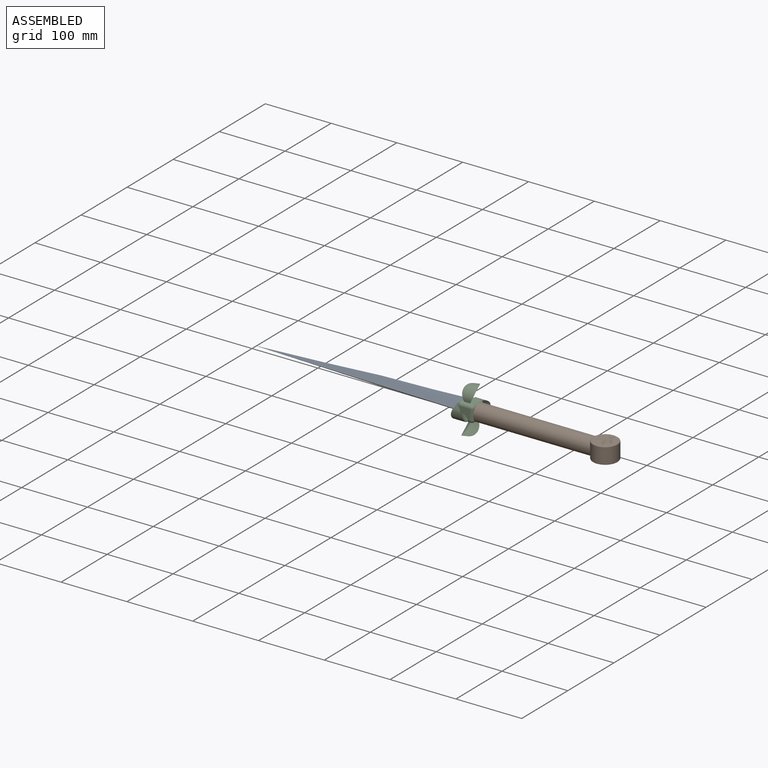
[diagram: assembled view]
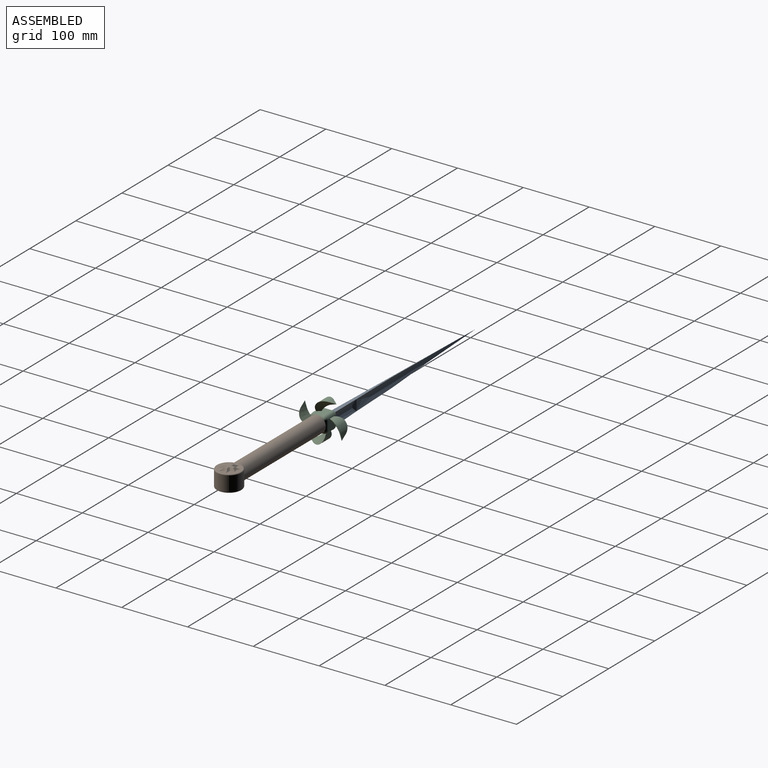
[diagram: assembled view, second angle]
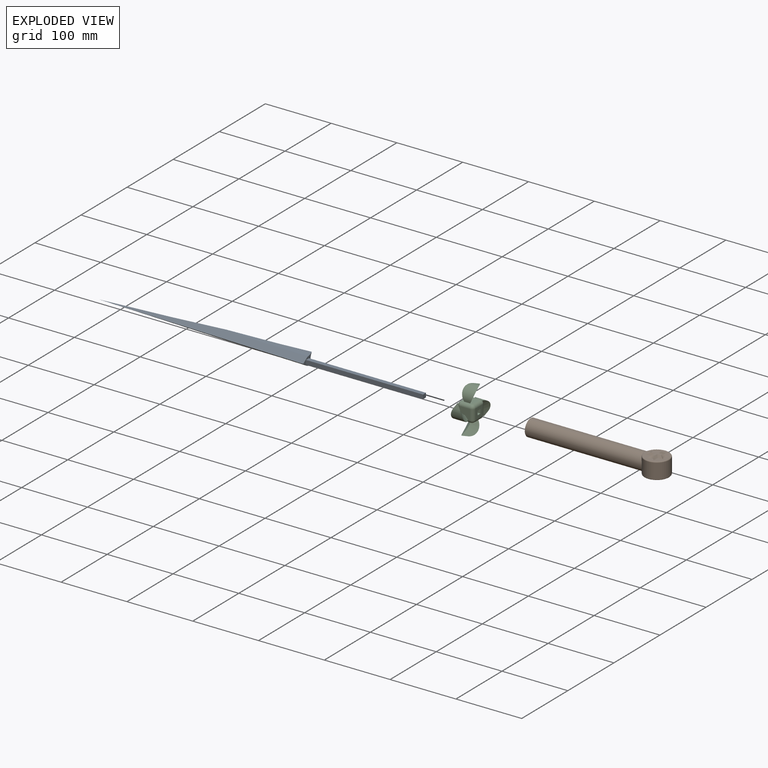
[diagram: exploded view]
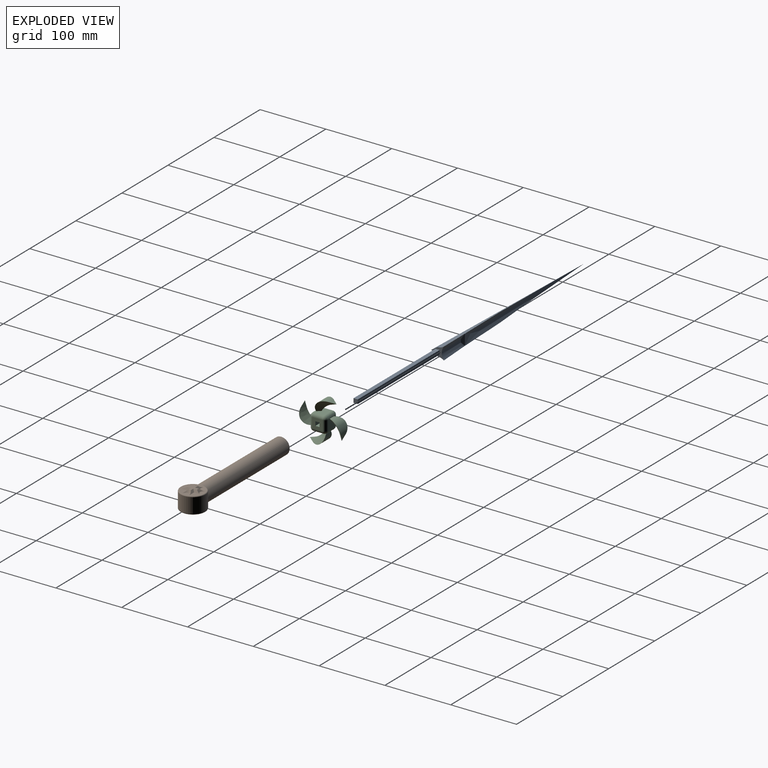
[diagram: exploded view, second angle]
ASSEMBLY  parts=3 mates=2
PART A: 11 faces, bbox 495x25.8x19.1 mm
  f0: plane 177.8x6.35mm, normal (0,-1,0), area 1129mm2, adj f1,f3,f4,f7
  f1: plane 177.8x6.35mm, normal (0,0,-1), area 1129mm2, adj f0,f2,f4,f7
  f2: plane 177.8x6.35mm, normal (0,1,0), area 1129mm2, adj f1,f3,f4,f7
  f3: plane 177.8x6.35mm, normal (0,0,1), area 1129mm2, adj f0,f2,f4,f7
  f4: plane 6.35x6.35mm, normal (1,0,0), area 40.3mm2, adj f0,f1,f2,f3
  f5: cylinder r=15.88mm len=127.12mm, axis (1,0,0), area 661.9mm2, adj f7,f8,f10
  f6: cylinder r=15.88mm len=127.12mm, axis (1,0,0), area 661.9mm2, adj f7,f9,f10
  f7: plane 19.05x19.05mm, normal (1,0,0), area 119.2mm2, adj f0,f1,f2,f3,f5,f6,f8,f9
  f8: plane 317.19x15.18mm, normal (-0.02,-0.83,-0.55), area 2706.9mm2, adj f5,f7,f9,f10
  f9: plane 317.19x15.18mm, normal (-0.02,0.83,-0.55), area 2706.9mm2, adj f6,f7,f8,f10
  f10: cone r=22.23mm half-angle=1deg, axis (-1,0,0), area 3520.9mm2, adj f5,f6,f7,f8,f9
PART B: 42 faces, bbox 214.8x43.5x34.4 mm
  f0: plane 25.4x25.4mm, normal (-1,0,0), area 466.4mm2, adj f1,f37,f38,f39,f40
  f1: cylinder r=12.7mm len=177.8mm, axis (1,0,0), area 13987.2mm2, adj f0,f2,f31,f33,f34,f36
  f2: cylinder r=18.85mm len=37.7mm, axis (0,0,-1), area 2184.4mm2, adj f1,f32,f35
  f3: plane 36.95x35.68mm, normal (0,0,1), area 606.8mm2, adj f19,f20,f21,f22,f23,f24,f25,f26
  f4: plane 36.56x35.29mm, normal (0,0,-1), area 606.8mm2, adj f7,f8,f9,f10,f11,f12,f13,f14
  f5: plane 15.16x15.16mm, normal (0,0,-1), area 98.7mm2, adj f7,f8,f9,f10,f11,f12,f13,f14
  f6: plane 15.16x15.16mm, normal (0,0,1), area 98.7mm2, adj f19,f20,f21,f22,f23,f24,f25,f26
  f7: cone r=8.26mm half-angle=45deg, axis (0,0,-1), area 50.8mm2, adj f4,f5,f8,f9
  f8: plane 16.37x5.84mm, normal (0.71,0,-0.71), area 30.4mm2, adj f4,f5,f7,f10
  f9: plane 16.36x5.83mm, normal (-0.71,0,-0.71), area 30.4mm2, adj f4,f5,f7,f11
  f10: plane 16.36x5.83mm, normal (0,0.71,-0.71), area 30.4mm2, adj f4,f5,f8,f12
  f11: plane 16.37x5.84mm, normal (0,0.71,-0.71), area 30.4mm2, adj f4,f5,f9,f13
  f12: cone r=8.26mm half-angle=45deg, axis (0,0,-1), area 50.8mm2, adj f4,f5,f10,f14
  f13: cone r=8.26mm half-angle=45deg, axis (0,0,-1), area 50.8mm2, adj f4,f5,f11,f15
  f14: plane 16.37x5.84mm, normal (0,-0.71,-0.71), area 30.4mm2, adj f4,f5,f12,f16
  f15: plane 16.36x5.83mm, normal (0,-0.71,-0.71), area 30.4mm2, adj f4,f5,f13,f17
  f16: plane 16.36x5.83mm, normal (0.71,0,-0.71), area 30.4mm2, adj f4,f5,f14,f18
  f17: plane 16.37x5.84mm, normal (-0.71,0,-0.71), area 30.4mm2, adj f4,f5,f15,f18
  f18: cone r=8.26mm half-angle=45deg, axis (0,0,-1), area 50.8mm2, adj f4,f5,f16,f17
  f19: cone r=5.08mm half-angle=45deg, axis (0,0,1), area 50.8mm2, adj f3,f6,f20,f21
  f20: plane 16.36x5.83mm, normal (0.71,0,0.71), area 30.4mm2, adj f3,f6,f19,f22
  f21: plane 16.37x5.84mm, normal (-0.71,0,0.71), area 30.4mm2, adj f3,f6,f19,f23
  f22: plane 16.37x5.84mm, normal (0,0.71,0.71), area 30.4mm2, adj f3,f6,f20,f24
  f23: plane 16.36x5.83mm, normal (0,0.71,0.71), area 30.4mm2, adj f3,f6,f21,f25
  f24: cone r=5.08mm half-angle=45deg, axis (0,0,1), area 50.8mm2, adj f3,f6,f22,f26
  f25: cone r=5.08mm half-angle=45deg, axis (0,0,1), area 50.8mm2, adj f3,f6,f23,f27
  f26: plane 16.36x5.83mm, normal (0,-0.71,0.71), area 30.4mm2, adj f3,f6,f24,f28
  f27: plane 16.37x5.84mm, normal (0,-0.71,0.71), area 30.4mm2, adj f3,f6,f25,f29
  f28: plane 16.37x5.84mm, normal (0.71,0,0.71), area 30.4mm2, adj f3,f6,f26,f30
  f29: plane 16.36x5.83mm, normal (-0.71,0,0.71), area 30.4mm2, adj f3,f6,f27,f30
  f30: cone r=5.08mm half-angle=45deg, axis (0,0,1), area 50.8mm2, adj f3,f6,f28,f29
  f31: bspline ~6.02x2.19mm, area 3.5mm2, adj f1,f4,f32
  f32: torus R=17.58mm, axis (0,0,1), area 208.6mm2, adj f2,f4,f31,f33
  f33: bspline ~5.68x2.09mm, area 3.5mm2, adj f1,f4,f32
  f34: bspline ~5.68x2.09mm, area 3.5mm2, adj f1,f3,f35
  f35: torus R=17.58mm, axis (0,0,1), area 208.6mm2, adj f2,f3,f34,f36
  f36: bspline ~6.02x2.19mm, area 3.5mm2, adj f1,f3,f35
  f37: plane 152.4x6.35mm, normal (0,0,-1), area 967.7mm2, adj f0,f38,f40,f41
  f38: plane 152.4x6.35mm, normal (0,-1,0), area 967.7mm2, adj f0,f37,f39,f41
  f39: plane 152.4x6.35mm, normal (0,0,1), area 967.7mm2, adj f0,f38,f40,f41
  f40: plane 152.4x6.35mm, normal (0,1,0), area 967.7mm2, adj f0,f37,f39,f41
  f41: plane 6.35x6.35mm, normal (-1,0,0), area 40.3mm2, adj f37,f38,f39,f40
PART C: 54 faces, bbox 68.9x68.9x25.6 mm
  f0: plane 15.43x15.43mm, normal (-1,0,0), area 209.3mm2, adj f8,f9,f35,f37,f45,f46
  f1: plane 15.43x15.43mm, normal (0,-1,0), area 209.3mm2, adj f4,f9,f31,f33,f42,f50
  f2: plane 15.24x15.24mm, normal (0,0,1), area 191.9mm2, adj f10,f11,f12,f13,f46,f49,f50,f53
  f3: plane 15.24x15.24mm, normal (0,0,-1), area 191.9mm2, adj f10,f11,f12,f13,f38,f41,f42,f45
  f4: cylinder r=5.08mm len=15.24mm, axis (0,0,-1), area 121.6mm2, adj f1,f5,f15,f40,f52
  f5: plane 15.43x15.43mm, normal (1,0,0), area 209.3mm2, adj f4,f6,f27,f29,f38,f53
  f6: cylinder r=5.08mm len=15.24mm, axis (0,0,-1), area 121.6mm2, adj f5,f7,f20,f39,f51
  f7: plane 15.43x15.43mm, normal (0,1,0), area 209.3mm2, adj f6,f8,f23,f25,f41,f49
  f8: cylinder r=5.08mm len=15.24mm, axis (0,0,-1), area 121.6mm2, adj f0,f7,f18,f43,f47
  f9: cylinder r=5.08mm len=15.24mm, axis (0,0,-1), area 121.6mm2, adj f0,f1,f17,f44,f48
  f10: plane 25.4x6.35mm, normal (1,0,0), area 161.3mm2, adj f2,f3,f11,f13
  f11: plane 25.4x6.35mm, normal (0,1,0), area 161.3mm2, adj f2,f3,f10,f12
  f12: plane 25.4x6.35mm, normal (-1,0,0), area 161.3mm2, adj f2,f3,f11,f13
  f13: plane 25.4x6.35mm, normal (0,-1,0), area 161.3mm2, adj f2,f3,f10,f12
  f14: plane 9.64x7.62mm, normal (-0.32,-0.95,0), area 38.7mm2, adj f15,f30,f32
  f15: cylinder r=15.65mm len=20.6mm, axis (0,0,-1), area 511mm2, adj f4,f14,f30,f31,f32,f33
  f16: plane 9.64x7.62mm, normal (-0.95,0.32,0), area 38.7mm2, adj f17,f34,f36
  f17: cylinder r=15.65mm len=20.6mm, axis (0,0,-1), area 511mm2, adj f9,f16,f34,f35,f36,f37
  f18: cylinder r=15.65mm len=20.6mm, axis (0,0,-1), area 511mm2, adj f8,f19,f22,f23,f24,f25
  f19: plane 9.64x7.62mm, normal (0.32,0.95,0), area 38.7mm2, adj f18,f22,f24
  f20: cylinder r=15.65mm len=20.6mm, axis (0,0,-1), area 511mm2, adj f6,f21,f26,f27,f28,f29
  f21: plane 9.64x7.62mm, normal (0.95,-0.32,0), area 38.7mm2, adj f20,f26,f28
  f22: plane 9.53x5.93mm, normal (0.22,-0.67,0.71), area 34.1mm2, adj f18,f19,f23,f24
  f23: cone r=27.22mm half-angle=45deg, axis (0,0,1), area 285.5mm2, adj f7,f18,f22,f25
  f24: plane 9.53x5.93mm, normal (0.22,-0.67,-0.71), area 34.1mm2, adj f18,f19,f22,f25
  f25: cone r=39.92mm half-angle=45deg, axis (0,0,-1), area 285.5mm2, adj f7,f18,f23,f24
  f26: plane 9.53x5.93mm, normal (-0.67,-0.22,0.71), area 34.1mm2, adj f20,f21,f27,f28
  f27: cone r=27.22mm half-angle=45deg, axis (0,0,1), area 285.5mm2, adj f5,f20,f26,f29
  f28: plane 9.53x5.93mm, normal (-0.67,-0.22,-0.71), area 34.1mm2, adj f20,f21,f26,f29
  f29: cone r=39.92mm half-angle=45deg, axis (0,0,-1), area 285.5mm2, adj f5,f20,f27,f28
  f30: plane 9.53x5.93mm, normal (-0.22,0.67,0.71), area 34.1mm2, adj f14,f15,f31,f32
  f31: cone r=27.22mm half-angle=45deg, axis (0,0,1), area 285.5mm2, adj f1,f15,f30,f33
  f32: plane 9.53x5.93mm, normal (-0.22,0.67,-0.71), area 34.1mm2, adj f14,f15,f30,f33
  f33: cone r=39.92mm half-angle=45deg, axis (0,0,-1), area 285.5mm2, adj f1,f15,f31,f32
  f34: plane 9.53x5.93mm, normal (0.67,0.22,0.71), area 34.1mm2, adj f16,f17,f35,f36
  f35: cone r=27.22mm half-angle=45deg, axis (0,0,1), area 285.5mm2, adj f0,f17,f34,f37
  f36: plane 9.53x5.93mm, normal (0.67,0.22,-0.71), area 34.1mm2, adj f16,f17,f34,f37
  f37: cone r=39.92mm half-angle=45deg, axis (0,0,-1), area 285.5mm2, adj f0,f17,f35,f36
  f38: cylinder r=5.08mm len=15.24mm, axis (0,1,0), area 121.6mm2, adj f3,f5,f39,f40
  f39: sphere r=5.08mm, area 40.5mm2, adj f6,f38,f41
  f40: sphere r=5.08mm, area 40.5mm2, adj f4,f38,f42
  f41: cylinder r=5.08mm len=15.24mm, axis (-1,0,0), area 121.6mm2, adj f3,f7,f39,f43
  f42: cylinder r=5.08mm len=15.24mm, axis (1,0,0), area 121.6mm2, adj f1,f3,f40,f44
  f43: sphere r=5.08mm, area 40.5mm2, adj f8,f41,f45
  f44: sphere r=5.08mm, area 40.5mm2, adj f9,f42,f45
  f45: cylinder r=5.08mm len=15.24mm, axis (0,-1,0), area 121.6mm2, adj f0,f3,f43,f44
  f46: cylinder r=5.08mm len=15.24mm, axis (0,1,0), area 121.6mm2, adj f0,f2,f47,f48
  f47: sphere r=5.08mm, area 40.5mm2, adj f8,f46,f49
  f48: sphere r=5.08mm, area 40.5mm2, adj f9,f46,f50
  f49: cylinder r=5.08mm len=15.24mm, axis (1,0,0), area 121.6mm2, adj f2,f7,f47,f51
  f50: cylinder r=5.08mm len=15.24mm, axis (-1,0,0), area 121.6mm2, adj f1,f2,f48,f52
  f51: sphere r=5.08mm, area 40.5mm2, adj f6,f49,f53
  f52: sphere r=5.08mm, area 40.5mm2, adj f4,f50,f53
  f53: cylinder r=5.08mm len=15.24mm, axis (0,-1,0), area 121.6mm2, adj f2,f5,f51,f52
PLACE A rot(axis=(-1,0,0),90deg) t=(-37.58,32.53,116.18)mm
PLACE B t=(66.89,58.29,113.01)mm
PLACE C rot(axis=(-0.58,0.58,-0.58),120deg) t=(-24.88,30.8,110.59)mm
MATE fastened B.f1 <-> A.f4  axis (-1,0,0) through (140.22,38.88,113.01)mm
MATE fastened C.f2 <-> B.f0  axis (1,0,0) through (-12.18,42.05,109.83)mm
